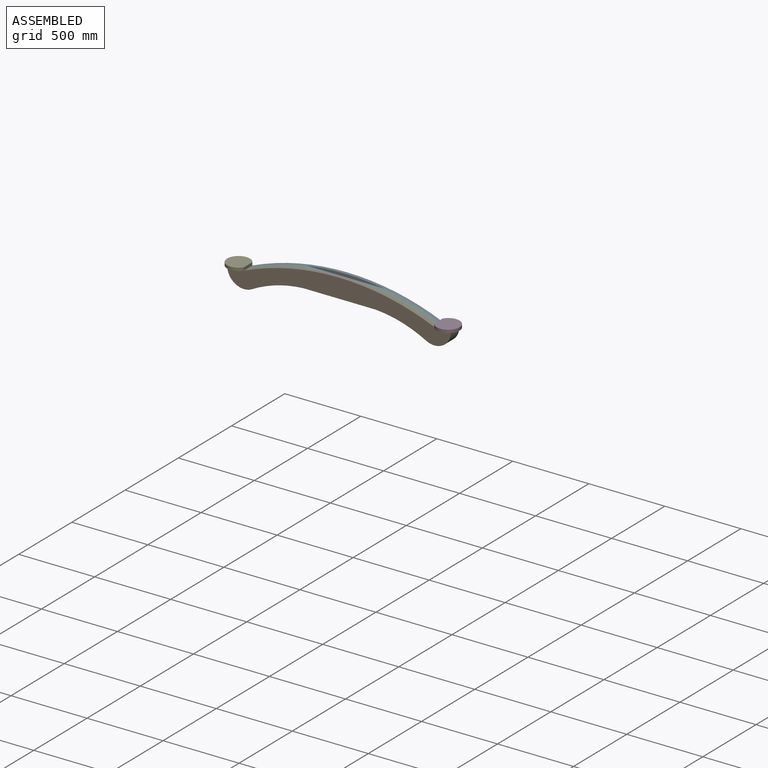
[diagram: assembled view]
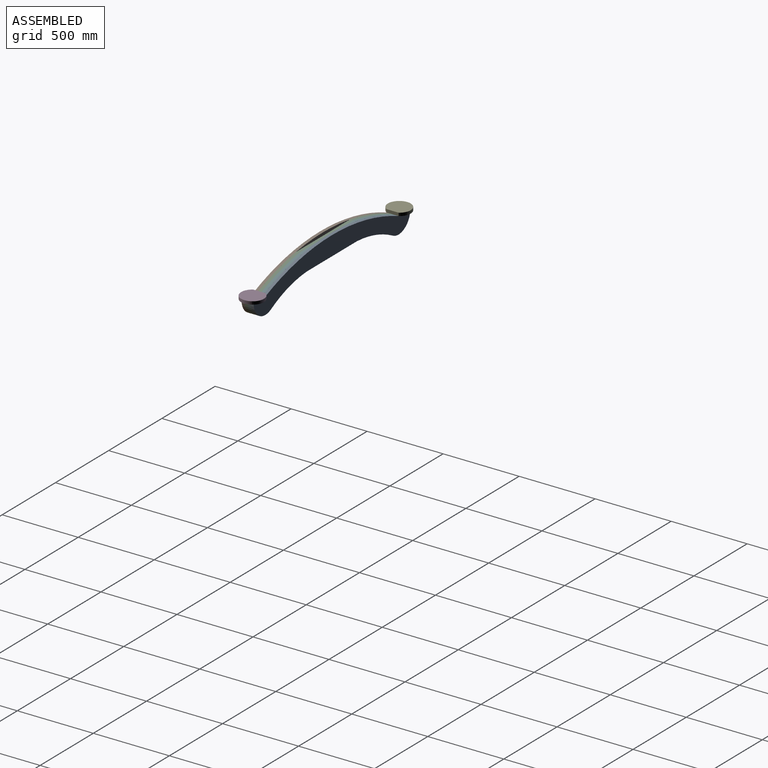
[diagram: assembled view, second angle]
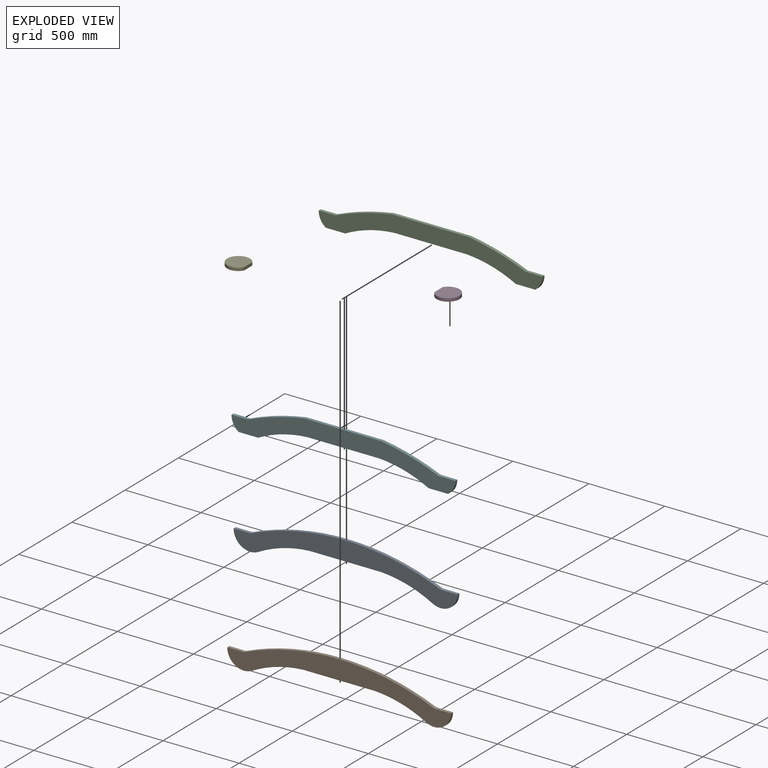
[diagram: exploded view]
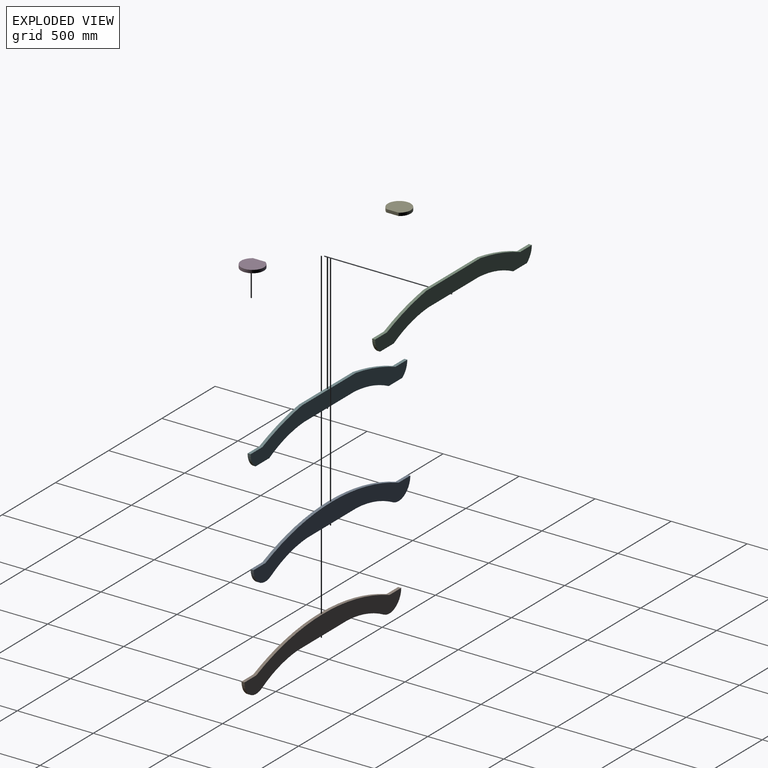
[diagram: exploded view, second angle]
ASSEMBLY  parts=6 mates=5
PART A: 10 faces, bbox 1472x20x236 mm
  f0: cylinder r=110mm len=162.71mm, axis (0,1,0), area 4555.1mm2, adj f1,f7,f8,f9
  f1: plane 110x20mm, normal (0,0,1), area 2200mm2, adj f0,f2,f8,f9
  f2: cylinder r=1618.06mm len=1252mm, axis (0,1,0), area 25710.9mm2, adj f1,f3,f8,f9
  f3: plane 110x20mm, normal (0,0,1), area 2200mm2, adj f2,f4,f8,f9
  f4: cylinder r=110mm len=162.71mm, axis (0,1,0), area 4555.1mm2, adj f3,f5,f8,f9
  f5: cylinder r=800mm len=338.29mm, axis (0,1,0), area 7094mm2, adj f4,f6,f8,f9
  f6: plane 470x20mm, normal (0,0,-1), area 9400mm2, adj f5,f7,f8,f9
  f7: cylinder r=800mm len=338.29mm, axis (0,1,0), area 7094mm2, adj f0,f6,f8,f9
  f8: plane 1472x236mm, normal (0,-1,0), area 159613.4mm2, adj f0,f1,f2,f3,f4,f5,f6,f7
  f9: plane 1472x236mm, normal (0,1,0), area 159613.4mm2, adj f0,f1,f2,f3,f4,f5,f6,f7
PART B: same geometry as A
PART C: 14 faces, bbox 1472x20x196 mm
  f0: plane 1472x196mm, normal (0,1,0), area 149394.4mm2, adj f1,f3,f4,f5,f6,f7,f8,f9
  f1: cylinder r=1618.06mm len=372.38mm, axis (0,1,0), area 7762.1mm2, adj f0,f2,f6,f11
  f2: plane 1472x196mm, normal (0,-1,0), area 149394.4mm2, adj f1,f3,f4,f5,f6,f7,f8,f9
  f3: cylinder r=110mm len=90mm, axis (0,1,0), area 2108.1mm2, adj f0,f2,f4,f12
  f4: plane 110x20mm, normal (0,0,1), area 2200mm2, adj f0,f2,f3,f5
  f5: cylinder r=1618.06mm len=372.38mm, axis (0,1,0), area 7762.1mm2, adj f0,f2,f4,f11
  f6: plane 110x20mm, normal (0,0,1), area 2200mm2, adj f0,f1,f2,f7
  f7: cylinder r=110mm len=90mm, axis (0,1,0), area 2108.1mm2, adj f0,f2,f6,f13
  f8: cylinder r=800mm len=326.04mm, axis (0,1,0), area 6816.1mm2, adj f0,f2,f9,f13
  f9: plane 470x20mm, normal (0,0,-1), area 9400mm2, adj f0,f2,f8,f10
  f10: cylinder r=800mm len=326.04mm, axis (0,1,0), area 6816.1mm2, adj f0,f2,f9,f12
  f11: plane 507.24x20mm, normal (0,0,1), area 10144.8mm2, adj f0,f1,f2,f5
  f12: plane 128.2x20mm, normal (0,0,-1), area 2564.1mm2, adj f0,f2,f3,f10
  f13: plane 128.2x20mm, normal (0,0,-1), area 2564.1mm2, adj f0,f2,f7,f8
PART D: 4 faces, bbox 150x138.4x20 mm
  f0: cylinder r=75mm len=150mm, axis (0,0,-1), area 7737.2mm2, adj f1,f2,f3
  f1: plane 150x138.44mm, normal (0,0,1), area 17044.9mm2, adj f0,f3
  f2: plane 150x138.44mm, normal (0,0,-1), area 17044.9mm2, adj f0,f3
  f3: plane 80x20mm, normal (0,1,0), area 1600mm2, adj f0,f1,f2
PART E: same geometry as D
PART F: same geometry as C
PLACE A t=(0,20,0)mm
PLACE B t=(0,-40,0)mm
PLACE C t=(0,-20,0)mm
PLACE D rot(axis=(0,0,1),90deg) t=(689.44,-20,0)mm
PLACE E rot(axis=(0,0,-1),90deg) t=(-689.44,-20,0)mm
PLACE F at identity fixed
MATE fastened A.f3 <-> F.f6  axis (0,0,1) through (-626,0,0)mm
MATE fastened C.f6 <-> F.f6  axis (0,0,1) through (-626,-20,0)mm
MATE fastened A.f3 <-> E.f2  axis (0,0,1) through (-626,20,0)mm
MATE fastened D.f2 <-> A.f1  axis (0,0,1) through (626,20,0)mm
MATE fastened C.f6 <-> B.f3  axis (0,0,1) through (-626,-40,0)mm
